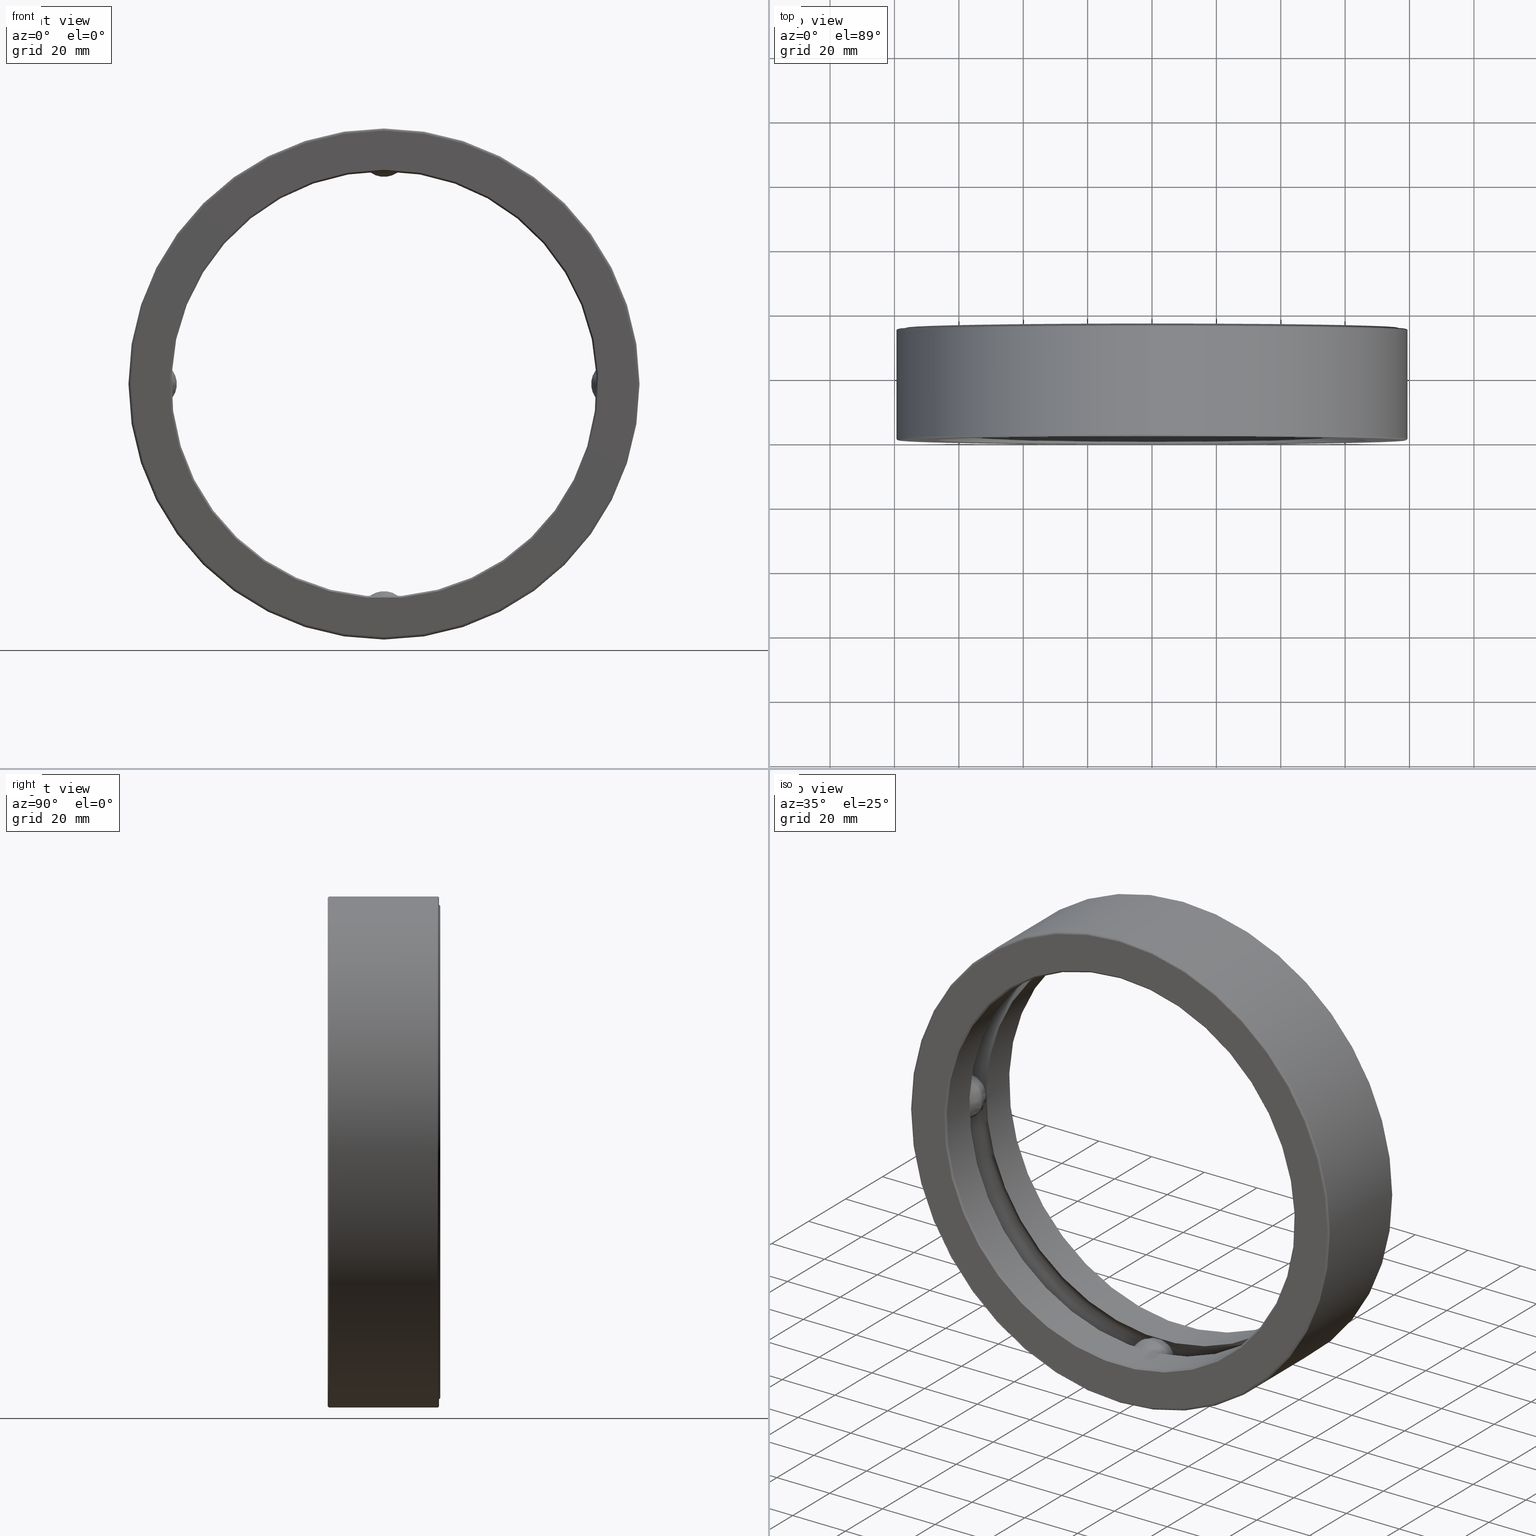
[diagram: canonical four-view strip — front | top / right | iso, engineering-drawing reading convention]
A machine part, canonical four-view strip (front | top / right | iso — engineering-drawing reading convention). The complete STEP part file that produces these views, byte-faithful:
ISO-10303-21;
HEADER;
FILE_DESCRIPTION (( 'STEP AP203' ),
    '1' );
FILE_NAME ('T-100-49.step',
    '2016-06-29T18:27:42',
    ( '' ),
    ( '' ),
    'SwSTEP 2.0',
    'SolidWorks 2016',
    '' );
FILE_SCHEMA (( 'CONFIG_CONTROL_DESIGN' ));
ENDSEC;

DATA;
#1 = CC_DESIGN_DATE_AND_TIME_ASSIGNMENT ( #250, #313, ( #371 ) ) ;
#2 = CARTESIAN_POINT ( 'NONE',  ( 0.0000000000000000000, 1.354999999999999100, 0.0000000000000000000 ) ) ;
#3 = CARTESIAN_POINT ( 'NONE',  ( 0.0000000000000000000, -2.433052119357234300E-016, 0.0000000000000000000 ) ) ;
#4 = EDGE_LOOP ( 'NONE', ( #182 ) ) ;
#5 = DIRECTION ( 'NONE',  ( -0.0000000000000000000, 1.000000000000000000, -0.0000000000000000000 ) ) ;
#6 = CARTESIAN_POINT ( 'NONE',  ( 0.0000000000000000000, 1.359999999999999900, 0.0000000000000000000 ) ) ;
#7 = VERTEX_POINT ( 'NONE', #215 ) ;
#8 = FACE_OUTER_BOUND ( 'NONE', #504, .T. ) ;
#9 =( LENGTH_UNIT ( ) NAMED_UNIT ( * ) SI_UNIT ( $, .METRE. ) );
#10 = CARTESIAN_POINT ( 'NONE',  ( 0.0000000000000000000, 0.0000000000000000000, 0.0000000000000000000 ) ) ;
#11 = DIRECTION ( 'NONE',  ( 0.0000000000000000000, 0.0000000000000000000, 1.000000000000000000 ) ) ;
#12 = PLANE ( 'NONE',  #190 ) ;
#13 = AXIS2_PLACEMENT_3D ( 'NONE', #195, #471, #516 ) ;
#14 = CARTESIAN_POINT ( 'NONE',  ( 0.0000000000000000000, 0.8691149773559424500, 2.600000000000000100 ) ) ;
#15 = ORIENTED_EDGE ( 'NONE', *, *, #137, .F. ) ;
#16 = APPLICATION_CONTEXT ( 'configuration controlled 3d designs of mechanical parts and assemblies' ) ;
#17 = PERSON_AND_ORGANIZATION_ROLE ( 'creator' ) ;
#18 = ORIENTED_EDGE ( 'NONE', *, *, #61, .F. ) ;
#19 = FACE_OUTER_BOUND ( 'NONE', #165, .T. ) ;
#20 = DIRECTION ( 'NONE',  ( -0.0000000000000000000, 1.000000000000000000, -0.0000000000000000000 ) ) ;
#21 = AXIS2_PLACEMENT_3D ( 'NONE', #336, #83, #126 ) ;
#22 = EDGE_CURVE ( 'NONE', #226, #226, #65, .T. ) ;
#23 = DIRECTION ( 'NONE',  ( -0.0000000000000000000, 1.000000000000000000, -0.0000000000000000000 ) ) ;
#24 = AXIS2_PLACEMENT_3D ( 'NONE', #136, #139, #529 ) ;
#25 = DIRECTION ( 'NONE',  ( -0.0000000000000000000, 1.000000000000000000, -0.0000000000000000000 ) ) ;
#26 = ORIENTED_EDGE ( 'NONE', *, *, #435, .T. ) ;
#27 = DIRECTION ( 'NONE',  ( -0.0000000000000000000, 1.000000000000000000, -0.0000000000000000000 ) ) ;
#28 = ORIENTED_EDGE ( 'NONE', *, *, #206, .F. ) ;
#29 = FACE_OUTER_BOUND ( 'NONE', #509, .T. ) ;
#30 = EDGE_LOOP ( 'NONE', ( #351 ) ) ;
#31 = ORIENTED_EDGE ( 'NONE', *, *, #96, .F. ) ;
#32 = COORDINATED_UNIVERSAL_TIME_OFFSET ( 5, 0, .BEHIND. ) ;
#33 = CC_DESIGN_APPROVAL ( #55, ( #432 ) ) ;
#34 = VERTEX_POINT ( 'NONE', #402 ) ;
#35 = DIRECTION ( 'NONE',  ( 0.0000000000000000000, 0.0000000000000000000, -1.000000000000000000 ) ) ;
#36 = EDGE_CURVE ( 'NONE', #167, #167, #503, .T. ) ;
#37 = CARTESIAN_POINT ( 'NONE',  ( 2.814750000000001000, 0.6874999999999996700, -1.965529419701742700E-014 ) ) ;
#38 = EDGE_LOOP ( 'NONE', ( #15 ) ) ;
#39 = EDGE_LOOP ( 'NONE', ( #56 ) ) ;
#40 = DIRECTION ( 'NONE',  ( -0.0000000000000000000, 1.000000000000000000, 0.0000000000000000000 ) ) ;
#41 = FACE_OUTER_BOUND ( 'NONE', #420, .T. ) ;
#42 = CIRCLE ( 'NONE', #286, 3.098000000000000800 ) ;
#43 = DIRECTION ( 'NONE',  ( 0.0000000000000000000, 0.0000000000000000000, 1.000000000000000000 ) ) ;
#44 = PLANE ( 'NONE',  #21 ) ;
#45 =( CONVERSION_BASED_UNIT ( 'INCH', #238 ) LENGTH_UNIT ( ) NAMED_UNIT ( #355 ) );
#46 = AXIS2_PLACEMENT_3D ( 'NONE', #334, #78, #162 ) ;
#47 = DIRECTION ( 'NONE',  ( -0.0000000000000000000, 1.000000000000000000, -0.0000000000000000000 ) ) ;
#48 = PERSON_AND_ORGANIZATION ( #374, #192 ) ;
#49 = CIRCLE ( 'NONE', #140, 3.125000000000000000 ) ;
#50 = CARTESIAN_POINT ( 'NONE',  ( 0.0000000000000000000, 1.374999999999999300, 0.0000000000000000000 ) ) ;
#51 = EDGE_CURVE ( 'NONE', #262, #262, #155, .T. ) ;
#52 = DIRECTION ( 'NONE',  ( 0.0000000000000000000, 0.0000000000000000000, 1.000000000000000000 ) ) ;
#53 = MANIFOLD_SOLID_BREP ( 'BALLS[3]', #407 ) ;
#54 = CARTESIAN_POINT ( 'NONE',  ( 0.0000000000000000000, 0.0000000000000000000, 0.0000000000000000000 ) ) ;
#55 = APPROVAL ( #311, 'UNSPECIFIED' ) ;
#56 = ORIENTED_EDGE ( 'NONE', *, *, #172, .F. ) ;
#57 = APPROVAL_ROLE ( '' ) ;
#58 = CALENDAR_DATE ( 2016, 29, 6 ) ;
#59 = VERTEX_POINT ( 'NONE', #531 ) ;
#60 = FACE_OUTER_BOUND ( 'NONE', #4, .T. ) ;
#61 = EDGE_CURVE ( 'NONE', #147, #147, #193, .T. ) ;
#62 = FACE_BOUND ( 'NONE', #472, .T. ) ;
#63 = AXIS2_PLACEMENT_3D ( 'NONE', #417, #27, #321 ) ;
#64 = EDGE_CURVE ( 'NONE', #482, #482, #42, .T. ) ;
#65 = CIRCLE ( 'NONE', #562, 3.105000000000000400 ) ;
#66 = CARTESIAN_POINT ( 'NONE',  ( 0.0000000000000000000, 0.0000000000000000000, 0.0000000000000000000 ) ) ;
#67 = EDGE_LOOP ( 'NONE', ( #292 ) ) ;
#68 = CONICAL_SURFACE ( 'NONE', #354, 3.100000000000000100, 0.7853981633975611900 ) ;
#69 = CIRCLE ( 'NONE', #416, 2.600000000000000100 ) ;
#70 = DIRECTION ( 'NONE',  ( -0.0000000000000000000, 1.000000000000000000, -0.0000000000000000000 ) ) ;
#71 = ORIENTED_EDGE ( 'NONE', *, *, #536, .T. ) ;
#72 = AXIS2_PLACEMENT_3D ( 'NONE', #278, #331, #424 ) ;
#73 = FACE_BOUND ( 'NONE', #120, .T. ) ;
#74 = ADVANCED_FACE ( 'NONE', ( ), #346, .T. ) ;
#75 = DIRECTION ( 'NONE',  ( -0.0000000000000000000, 1.000000000000000000, -0.0000000000000000000 ) ) ;
#76 = ADVANCED_FACE ( 'NONE', ( #97, #82 ), #12, .F. ) ;
#77 = EDGE_LOOP ( 'NONE', ( #159 ) ) ;
#78 = DIRECTION ( 'NONE',  ( -0.0000000000000000000, 1.000000000000000000, -0.0000000000000000000 ) ) ;
#79 = EDGE_LOOP ( 'NONE', ( #501 ) ) ;
#80 = AXIS2_PLACEMENT_3D ( 'NONE', #499, #405, #349 ) ;
#81 = PERSON_AND_ORGANIZATION ( #374, #192 ) ;
#82 = FACE_OUTER_BOUND ( 'NONE', #327, .T. ) ;
#83 = DIRECTION ( 'NONE',  ( 0.0000000000000000000, -1.000000000000000000, 0.0000000000000000000 ) ) ;
#84 = DIRECTION ( 'NONE',  ( 1.000000000000000000, 0.0000000000000000000, -1.047444401652939500E-014 ) ) ;
#85 = EDGE_CURVE ( 'NONE', #373, #373, #227, .T. ) ;
#86 = CARTESIAN_POINT ( 'NONE',  ( 0.0000000000000000000, 0.0000000000000000000, 0.0000000000000000000 ) ) ;
#87 = ORIENTED_EDGE ( 'NONE', *, *, #225, .T. ) ;
#88 = ADVANCED_FACE ( 'NONE', ( #316, #62 ), #90, .T. ) ;
#89 = EDGE_CURVE ( 'NONE', #559, #559, #69, .T. ) ;
#90 = CONICAL_SURFACE ( 'NONE', #379, 3.009999999999999800, 0.7853981633974529400 ) ;
#91 = DIRECTION ( 'NONE',  ( 0.0000000000000000000, 0.0000000000000000000, 1.000000000000000000 ) ) ;
#92 = DIRECTION ( 'NONE',  ( -0.0000000000000000000, 1.000000000000000000, -0.0000000000000000000 ) ) ;
#93 = AXIS2_PLACEMENT_3D ( 'NONE', #2, #487, #299 ) ;
#94 = APPROVAL_PERSON_ORGANIZATION ( #48, #55, #273 ) ;
#95 = TOROIDAL_SURFACE ( 'NONE', #46, 2.814750000000001000, 0.2812499999999998300 ) ;
#96 = EDGE_CURVE ( 'NONE', #34, #34, #410, .T. ) ;
#97 = FACE_BOUND ( 'NONE', #361, .T. ) ;
#98 = PERSON_AND_ORGANIZATION_ROLE ( 'classification_officer' ) ;
#99 = PERSON_AND_ORGANIZATION_ROLE ( 'design_supplier' ) ;
#100 = EDGE_LOOP ( 'NONE', ( #153 ) ) ;
#101 = CONICAL_SURFACE ( 'NONE', #291, 3.109999999999999900, 0.7853981633974492800 ) ;
#102 = CC_DESIGN_PERSON_AND_ORGANIZATION_ASSIGNMENT ( #81, #500, ( #318 ) ) ;
#103 = CARTESIAN_POINT ( 'NONE',  ( -9.912768790691179700E-032, -1.216526059678617200E-016, 0.0000000000000000000 ) ) ;
#104 = AXIS2_PLACEMENT_3D ( 'NONE', #86, #339, #342 ) ;
#105 = DIRECTION ( 'NONE',  ( 0.0000000000000000000, 0.0000000000000000000, 1.000000000000000000 ) ) ;
#106 = DIRECTION ( 'NONE',  ( -0.0000000000000000000, 1.000000000000000000, -0.0000000000000000000 ) ) ;
#107 = EDGE_CURVE ( 'NONE', #467, #467, #252, .T. ) ;
#108 = EDGE_LOOP ( 'NONE', ( #359 ) ) ;
#109 = FACE_OUTER_BOUND ( 'NONE', #30, .T. ) ;
#110 = FACE_BOUND ( 'NONE', #548, .T. ) ;
#111 = EDGE_CURVE ( 'NONE', #59, #59, #49, .T. ) ;
#112 = ADVANCED_FACE ( 'NONE', ( #60, #390 ), #369, .F. ) ;
#113 = MANIFOLD_SOLID_BREP ( 'Revolve2[1]', #224 ) ;
#114 = EDGE_LOOP ( 'NONE', ( #453 ) ) ;
#115 = ADVANCED_FACE ( 'NONE', ( #211, #463 ), #274, .F. ) ;
#116 = AXIS2_PLACEMENT_3D ( 'NONE', #298, #40, #169 ) ;
#117 = DIRECTION ( 'NONE',  ( -0.0000000000000000000, 1.000000000000000000, -0.0000000000000000000 ) ) ;
#118 = DIRECTION ( 'NONE',  ( 0.0000000000000000000, 0.0000000000000000000, 1.000000000000000000 ) ) ;
#119 = DIRECTION ( 'NONE',  ( -1.000000000000000000, 0.0000000000000000000, 6.982962677686272200E-015 ) ) ;
#120 = EDGE_LOOP ( 'NONE', ( #191 ) ) ;
#121 = DIRECTION ( 'NONE',  ( 0.0000000000000000000, 0.0000000000000000000, 1.000000000000000000 ) ) ;
#122 = EDGE_LOOP ( 'NONE', ( #496 ) ) ;
#123 = CARTESIAN_POINT ( 'NONE',  ( 0.0000000000000000000, 1.286999999999999500, 0.0000000000000000000 ) ) ;
#124 = FACE_OUTER_BOUND ( 'NONE', #67, .T. ) ;
#125 = CIRCLE ( 'NONE', #418, 3.039750000000000600 ) ;
#126 = DIRECTION ( 'NONE',  ( 0.0000000000000000000, -0.0000000000000000000, -1.000000000000000000 ) ) ;
#127 = DIRECTION ( 'NONE',  ( 0.0000000000000000000, -1.000000000000000000, 0.0000000000000000000 ) ) ;
#128 = DIRECTION ( 'NONE',  ( -0.0000000000000000000, 1.000000000000000000, -0.0000000000000000000 ) ) ;
#129 = ORIENTED_EDGE ( 'NONE', *, *, #85, .F. ) ;
#130 = DIRECTION ( 'NONE',  ( -0.0000000000000000000, 1.000000000000000000, -0.0000000000000000000 ) ) ;
#131 = DIRECTION ( 'NONE',  ( -0.0000000000000000000, 1.000000000000000000, -0.0000000000000000000 ) ) ;
#132 = AXIS2_PLACEMENT_3D ( 'NONE', #149, #232, #283 ) ;
#133 = CARTESIAN_POINT ( 'NONE',  ( 0.0000000000000000000, 0.5058850226440569900, 2.600000000000000100 ) ) ;
#134 = CARTESIAN_POINT ( 'NONE',  ( 0.0000000000000000000, 1.359999999999999900, 0.0000000000000000000 ) ) ;
#135 = ORIENTED_EDGE ( 'NONE', *, *, #22, .T. ) ;
#136 = CARTESIAN_POINT ( 'NONE',  ( 0.0000000000000000000, 0.0000000000000000000, 0.0000000000000000000 ) ) ;
#137 = EDGE_CURVE ( 'NONE', #445, #445, #375, .T. ) ;
#138 = CYLINDRICAL_SURFACE ( 'NONE', #24, 3.125000000000000000 ) ;
#139 = DIRECTION ( 'NONE',  ( -0.0000000000000000000, 1.000000000000000000, -0.0000000000000000000 ) ) ;
#140 = AXIS2_PLACEMENT_3D ( 'NONE', #196, #367, #328 ) ;
#141 = APPROVAL_ROLE ( '' ) ;
#142 = DIRECTION ( 'NONE',  ( 1.000000000000000000, 0.0000000000000000000, 0.0000000000000000000 ) ) ;
#143 = CLOSED_SHELL ( 'NONE', ( #430 ) ) ;
#144 = FACE_OUTER_BOUND ( 'NONE', #122, .T. ) ;
#145 = ORIENTED_EDGE ( 'NONE', *, *, #111, .F. ) ;
#146 = APPROVAL_DATE_TIME ( #173, #231 ) ;
#147 = VERTEX_POINT ( 'NONE', #307 ) ;
#148 = DIRECTION ( 'NONE',  ( 0.0000000000000000000, 0.0000000000000000000, 1.000000000000000000 ) ) ;
#149 = CARTESIAN_POINT ( 'NONE',  ( 0.0000000000000000000, 1.339999999999999900, 0.0000000000000000000 ) ) ;
#150 = DIRECTION ( 'NONE',  ( -0.0000000000000000000, 1.000000000000000000, -0.0000000000000000000 ) ) ;
#151 = EDGE_LOOP ( 'NONE', ( #335 ) ) ;
#152 = PERSON_AND_ORGANIZATION ( #374, #192 ) ;
#153 = ORIENTED_EDGE ( 'NONE', *, *, #451, .T. ) ;
#154 = CIRCLE ( 'NONE', #362, 3.009999999999999800 ) ;
#155 = CIRCLE ( 'NONE', #257, 3.105000000000000900 ) ;
#156 = DIRECTION ( 'NONE',  ( 0.0000000000000000000, 0.0000000000000000000, 1.000000000000000000 ) ) ;
#157 = ADVANCED_FACE ( 'NONE', ( #144, #446 ), #526, .T. ) ;
#158 = AXIS2_PLACEMENT_3D ( 'NONE', #66, #70, #475 ) ;
#159 = ORIENTED_EDGE ( 'NONE', *, *, #51, .F. ) ;
#160 = CALENDAR_DATE ( 2016, 29, 6 ) ;
#161 = FACE_OUTER_BOUND ( 'NONE', #363, .T. ) ;
#162 = DIRECTION ( 'NONE',  ( 0.0000000000000000000, 0.0000000000000000000, 1.000000000000000000 ) ) ;
#163 = ORIENTED_EDGE ( 'NONE', *, *, #64, .T. ) ;
#164 = ORIENTED_EDGE ( 'NONE', *, *, #36, .T. ) ;
#165 = EDGE_LOOP ( 'NONE', ( #478 ) ) ;
#166 = CARTESIAN_POINT ( 'NONE',  ( 0.0000000000000000000, 0.0000000000000000000, 0.0000000000000000000 ) ) ;
#167 = VERTEX_POINT ( 'NONE', #489 ) ;
#168 = FACE_OUTER_BOUND ( 'NONE', #542, .T. ) ;
#169 = DIRECTION ( 'NONE',  ( 0.0000000000000000000, 0.0000000000000000000, 1.000000000000000000 ) ) ;
#170 = CARTESIAN_POINT ( 'NONE',  ( 0.0000000000000000000, 0.8562499999999996200, 3.098000000000000800 ) ) ;
#171 = DIRECTION ( 'NONE',  ( -0.0000000000000000000, 1.000000000000000000, -0.0000000000000000000 ) ) ;
#172 = EDGE_CURVE ( 'NONE', #389, #389, #322, .T. ) ;
#173 = DATE_AND_TIME ( #160, #287 ) ;
#174 = SPHERICAL_SURFACE ( 'NONE', #241, 0.2812500000000001700 ) ;
#175 = DIRECTION ( 'NONE',  ( -0.0000000000000000000, 1.000000000000000000, -0.0000000000000000000 ) ) ;
#176 = CARTESIAN_POINT ( 'NONE',  ( 0.0000000000000000000, 0.02000000000000060800, 2.600000000000000100 ) ) ;
#177 = PRODUCT_DEFINITION_FORMATION_WITH_SPECIFIED_SOURCE ( 'ANY', '', #318, .NOT_KNOWN. ) ;
#178 = APPROVAL_STATUS ( 'not_yet_approved' ) ;
#179 = APPROVAL_STATUS ( 'not_yet_approved' ) ;
#180 = EDGE_CURVE ( 'NONE', #281, #281, #551, .T. ) ;
#181 = CALENDAR_DATE ( 2016, 29, 6 ) ;
#182 = ORIENTED_EDGE ( 'NONE', *, *, #435, .F. ) ;
#183 = VERTEX_POINT ( 'NONE', #14 ) ;
#184 = CIRCLE ( 'NONE', #72, 3.105000000000000900 ) ;
#185 = APPLICATION_CONTEXT ( 'configuration controlled 3d designs of mechanical parts and assemblies' ) ;
#186 = MANIFOLD_SOLID_BREP ( 'Revolve2[2]', #340 ) ;
#187 = CARTESIAN_POINT ( 'NONE',  ( 0.0000000000000000000, -2.433052119357234800E-016, 0.0000000000000000000 ) ) ;
#188 = AXIS2_PLACEMENT_3D ( 'NONE', #3, #566, #433 ) ;
#189 = FACE_BOUND ( 'NONE', #209, .T. ) ;
#190 = AXIS2_PLACEMENT_3D ( 'NONE', #395, #127, #493 ) ;
#191 = ORIENTED_EDGE ( 'NONE', *, *, #228, .T. ) ;
#192 = ORGANIZATION ( 'UNSPECIFIED', 'UNSPECIFIED', '' ) ;
#193 = CIRCLE ( 'NONE', #477, 3.044999999999999900 ) ;
#194 = AXIS2_PLACEMENT_3D ( 'NONE', #166, #75, #485 ) ;
#195 = CARTESIAN_POINT ( 'NONE',  ( -2.814750000000001000, 0.6874999999999996700, 0.0000000000000000000 ) ) ;
#196 = CARTESIAN_POINT ( 'NONE',  ( 0.0000000000000000000, 1.339999999999999900, 0.0000000000000000000 ) ) ;
#197 = CARTESIAN_POINT ( 'NONE',  ( 0.0000000000000000000, 0.8562499999999996200, 0.0000000000000000000 ) ) ;
#198 = ADVANCED_FACE ( 'NONE', ( #29, #282 ), #310, .F. ) ;
#199 = CYLINDRICAL_SURFACE ( 'NONE', #158, 2.600000000000000100 ) ;
#200 = EDGE_CURVE ( 'NONE', #309, #309, #515, .T. ) ;
#201 = ADVANCED_FACE ( 'NONE', ( #161, #423 ), #199, .F. ) ;
#202 = DIRECTION ( 'NONE',  ( 6.982962677686272200E-015, -0.0000000000000000000, 1.000000000000000000 ) ) ;
#203 = AXIS2_PLACEMENT_3D ( 'NONE', #187, #549, #470 ) ;
#204 = EDGE_LOOP ( 'NONE', ( #163 ) ) ;
#205 = FACE_BOUND ( 'NONE', #341, .T. ) ;
#206 = EDGE_CURVE ( 'NONE', #353, #353, #297, .T. ) ;
#207 = DIRECTION ( 'NONE',  ( -0.0000000000000000000, 1.000000000000000000, -0.0000000000000000000 ) ) ;
#208 = DIRECTION ( 'NONE',  ( -3.491481338843136100E-015, 0.0000000000000000000, -1.000000000000000000 ) ) ;
#209 = EDGE_LOOP ( 'NONE', ( #442 ) ) ;
#210 = FACE_BOUND ( 'NONE', #279, .T. ) ;
#211 = FACE_OUTER_BOUND ( 'NONE', #269, .T. ) ;
#212 = CARTESIAN_POINT ( 'NONE',  ( 0.0000000000000000000, -2.438577946378415400E-016, 3.105000000000000900 ) ) ;
#213 = DIRECTION ( 'NONE',  ( -0.0000000000000000000, 1.000000000000000000, -0.0000000000000000000 ) ) ;
#214 = AXIS2_PLACEMENT_3D ( 'NONE', #284, #23, #105 ) ;
#215 = CARTESIAN_POINT ( 'NONE',  ( 0.0000000000000000000, 1.374999999999999300, 3.009999999999999800 ) ) ;
#216 = CARTESIAN_POINT ( 'NONE',  ( 0.0000000000000000000, 0.01499999999999997700, 3.125000000000000000 ) ) ;
#217 = AXIS2_PLACEMENT_3D ( 'NONE', #388, #207, #121 ) ;
#218 = CC_DESIGN_SECURITY_CLASSIFICATION ( #371, ( #177 ) ) ;
#219 = PERSON_AND_ORGANIZATION ( #374, #192 ) ;
#220 = CARTESIAN_POINT ( 'NONE',  ( 0.0000000000000000000, 1.286999999999999500, 3.098000000000000800 ) ) ;
#221 =( NAMED_UNIT ( * ) PLANE_ANGLE_UNIT ( ) SI_UNIT ( $, .RADIAN. ) );
#222 = AXIS2_PLACEMENT_3D ( 'NONE', #386, #479, #483 ) ;
#223 = EDGE_LOOP ( 'NONE', ( #382 ) ) ;
#224 = CLOSED_SHELL ( 'NONE', ( #476, #384, #288, #300, #244, #76, #563, #517, #561, #242, #481, #520, #112, #332, #198 ) ) ;
#225 = EDGE_CURVE ( 'NONE', #497, #497, #184, .T. ) ;
#226 = VERTEX_POINT ( 'NONE', #535 ) ;
#227 = CIRCLE ( 'NONE', #217, 3.039750000000000600 ) ;
#228 = EDGE_CURVE ( 'NONE', #502, #502, #488, .T. ) ;
#229 = EDGE_LOOP ( 'NONE', ( #370 ) ) ;
#230 = EDGE_LOOP ( 'NONE', ( #461 ) ) ;
#231 = APPROVAL ( #179, 'UNSPECIFIED' ) ;
#232 = DIRECTION ( 'NONE',  ( -0.0000000000000000000, 1.000000000000000000, -0.0000000000000000000 ) ) ;
#233 = DIRECTION ( 'NONE',  ( -0.0000000000000000000, 1.000000000000000000, -0.0000000000000000000 ) ) ;
#234 = CLOSED_SHELL ( 'NONE', ( #434 ) ) ;
#235 = EDGE_LOOP ( 'NONE', ( #275 ) ) ;
#236 = EDGE_LOOP ( 'NONE', ( #145 ) ) ;
#237 = ORIENTED_EDGE ( 'NONE', *, *, #225, .F. ) ;
#238 = LENGTH_MEASURE_WITH_UNIT ( LENGTH_MEASURE( 0.02539999999999999900 ), #9 );
#239 = FACE_BOUND ( 'NONE', #38, .T. ) ;
#240 = PLANE ( 'NONE',  #385 ) ;
#241 = AXIS2_PLACEMENT_3D ( 'NONE', #37, #202, #119 ) ;
#242 = ADVANCED_FACE ( 'NONE', ( #168, #189 ), #240, .F. ) ;
#243 = DIRECTION ( 'NONE',  ( 0.0000000000000000000, 0.0000000000000000000, 1.000000000000000000 ) ) ;
#244 = ADVANCED_FACE ( 'NONE', ( #360, #276 ), #429, .F. ) ;
#245 = CARTESIAN_POINT ( 'NONE',  ( 0.0000000000000000000, 0.8562499999999996200, 0.0000000000000000000 ) ) ;
#246 = AXIS2_PLACEMENT_3D ( 'NONE', #527, #233, #528 ) ;
#247 = PLANE ( 'NONE',  #116 ) ;
#248 = EDGE_LOOP ( 'NONE', ( #18 ) ) ;
#249 = DIRECTION ( 'NONE',  ( 0.0000000000000000000, 0.0000000000000000000, 1.000000000000000000 ) ) ;
#250 = DATE_AND_TIME ( #58, #364 ) ;
#251 = FACE_OUTER_BOUND ( 'NONE', #428, .T. ) ;
#252 = CIRCLE ( 'NONE', #203, 3.109999999999999900 ) ;
#253 = CC_DESIGN_DATE_AND_TIME_ASSIGNMENT ( #380, #458, ( #432 ) ) ;
#254 = ADVANCED_FACE ( 'NONE', ( ), #560, .T. ) ;
#255 = CARTESIAN_POINT ( 'NONE',  ( 0.0000000000000000000, 1.339999999999999900, 0.0000000000000000000 ) ) ;
#256 = ORIENTED_EDGE ( 'NONE', *, *, #206, .T. ) ;
#257 = AXIS2_PLACEMENT_3D ( 'NONE', #537, #92, #249 ) ;
#258 = DIRECTION ( 'NONE',  ( 0.0000000000000000000, 0.0000000000000000000, 1.000000000000000000 ) ) ;
#259 = CARTESIAN_POINT ( 'NONE',  ( 0.0000000000000000000, 0.8562499999999996200, 3.039750000000000600 ) ) ;
#260 = APPROVAL_PERSON_ORGANIZATION ( #280, #231, #57 ) ;
#261 = DIRECTION ( 'NONE',  ( 0.0000000000000000000, 0.0000000000000000000, 1.000000000000000000 ) ) ;
#262 = VERTEX_POINT ( 'NONE', #212 ) ;
#263 = CARTESIAN_POINT ( 'NONE',  ( 0.0000000000000000000, -2.433052119357234300E-016, 3.100000000000000100 ) ) ;
#264 = AXIS2_PLACEMENT_3D ( 'NONE', #523, #392, #243 ) ;
#265 = CARTESIAN_POINT ( 'NONE',  ( 0.0000000000000000000, 1.339999999999999900, 3.105000000000000900 ) ) ;
#266 = MANIFOLD_SOLID_BREP ( 'BALLS[2]', #143 ) ;
#267 = APPLICATION_PROTOCOL_DEFINITION ( 'international standard', 'config_control_design', 1994, #16 ) ;
#268 = EDGE_CURVE ( 'NONE', #514, #514, #125, .T. ) ;
#269 = EDGE_LOOP ( 'NONE', ( #71 ) ) ;
#270 = ORIENTED_EDGE ( 'NONE', *, *, #268, .T. ) ;
#271 = PERSON_AND_ORGANIZATION ( #374, #192 ) ;
#272 = VERTEX_POINT ( 'NONE', #216 ) ;
#273 = APPROVAL_ROLE ( '' ) ;
#274 = TOROIDAL_SURFACE ( 'NONE', #246, 2.814750000000001000, 0.2812499999999998900 ) ;
#275 = ORIENTED_EDGE ( 'NONE', *, *, #96, .T. ) ;
#276 = FACE_OUTER_BOUND ( 'NONE', #235, .T. ) ;
#277 = DIRECTION ( 'NONE',  ( -0.0000000000000000000, 1.000000000000000000, -0.0000000000000000000 ) ) ;
#278 = CARTESIAN_POINT ( 'NONE',  ( 0.0000000000000000000, 0.004999999999999257600, 0.0000000000000000000 ) ) ;
#279 = EDGE_LOOP ( 'NONE', ( #387 ) ) ;
#280 = PERSON_AND_ORGANIZATION ( #374, #192 ) ;
#281 = VERTEX_POINT ( 'NONE', #170 ) ;
#282 = FACE_OUTER_BOUND ( 'NONE', #230, .T. ) ;
#283 = DIRECTION ( 'NONE',  ( 0.0000000000000000000, 0.0000000000000000000, 1.000000000000000000 ) ) ;
#284 = CARTESIAN_POINT ( 'NONE',  ( 0.0000000000000000000, 1.375000000000000000, 0.0000000000000000000 ) ) ;
#285 = CC_DESIGN_APPROVAL ( #411, ( #371 ) ) ;
#286 = AXIS2_PLACEMENT_3D ( 'NONE', #123, #533, #393 ) ;
#287 = LOCAL_TIME ( 14, 27, 42.00000000000000000, #32 ) ;
#288 = ADVANCED_FACE ( 'NONE', ( #557, #546 ), #518, .F. ) ;
#289 = ORIENTED_EDGE ( 'NONE', *, *, #536, .F. ) ;
#290 = ADVANCED_FACE ( 'NONE', ( #508, #239 ), #438, .F. ) ;
#291 = AXIS2_PLACEMENT_3D ( 'NONE', #304, #130, #91 ) ;
#292 = ORIENTED_EDGE ( 'NONE', *, *, #89, .F. ) ;
#293 = COORDINATED_UNIVERSAL_TIME_OFFSET ( 5, 0, .BEHIND. ) ;
#294 = PLANE ( 'NONE',  #222 ) ;
#295 = TOROIDAL_SURFACE ( 'NONE', #465, 3.105000000000000400, 0.01999999999999992400 ) ;
#296 = AXIS2_PLACEMENT_3D ( 'NONE', #10, #131, #261 ) ;
#297 = CIRCLE ( 'NONE', #494, 3.105000000000000900 ) ;
#298 = CARTESIAN_POINT ( 'NONE',  ( -1.926303072455575300E-015, 1.374999999999999800, 0.0000000000000000000 ) ) ;
#299 = DIRECTION ( 'NONE',  ( 0.0000000000000000000, 0.0000000000000000000, 1.000000000000000000 ) ) ;
#300 = ADVANCED_FACE ( 'NONE', ( #474, #303 ), #391, .F. ) ;
#301 = DIRECTION ( 'NONE',  ( -0.0000000000000000000, 1.000000000000000000, -0.0000000000000000000 ) ) ;
#302 = APPROVAL_DATE_TIME ( #426, #411 ) ;
#303 = FACE_BOUND ( 'NONE', #108, .T. ) ;
#304 = CARTESIAN_POINT ( 'NONE',  ( 0.0000000000000000000, -2.433052119357234800E-016, 0.0000000000000000000 ) ) ;
#305 = AXIS2_PLACEMENT_3D ( 'NONE', #396, #128, #512 ) ;
#306 = DIRECTION ( 'NONE',  ( -0.0000000000000000000, 1.000000000000000000, -0.0000000000000000000 ) ) ;
#307 = CARTESIAN_POINT ( 'NONE',  ( 0.0000000000000000000, 1.339999999999999900, 3.044999999999999900 ) ) ;
#308 = ORIENTED_EDGE ( 'NONE', *, *, #172, .T. ) ;
#309 = VERTEX_POINT ( 'NONE', #498 ) ;
#310 = CYLINDRICAL_SURFACE ( 'NONE', #345, 2.600000000000000100 ) ;
#311 = APPROVAL_STATUS ( 'not_yet_approved' ) ;
#312 = CC_DESIGN_APPROVAL ( #231, ( #177 ) ) ;
#313 = DATE_TIME_ROLE ( 'classification_date' ) ;
#314 = AXIS2_PLACEMENT_3D ( 'NONE', #326, #554, #148 ) ;
#315 = CIRCLE ( 'NONE', #505, 3.125000000000000000 ) ;
#316 = FACE_OUTER_BOUND ( 'NONE', #204, .T. ) ;
#317 = AXIS2_PLACEMENT_3D ( 'NONE', #348, #84, #350 ) ;
#318 = PRODUCT ( 'T-100-49', 'T-100-49', '', ( #459 ) ) ;
#319 = AXIS2_PLACEMENT_3D ( 'NONE', #54, #394, #142 ) ;
#320 = COORDINATED_UNIVERSAL_TIME_OFFSET ( 5, 0, .BEHIND. ) ;
#321 = DIRECTION ( 'NONE',  ( 0.0000000000000000000, 0.0000000000000000000, 1.000000000000000000 ) ) ;
#322 = CIRCLE ( 'NONE', #132, 3.105000000000000900 ) ;
#323 = UNCERTAINTY_MEASURE_WITH_UNIT (LENGTH_MEASURE( 1.000000000000000100E-005 ), #45, 'distance_accuracy_value', 'NONE');
#324 = CARTESIAN_POINT ( 'NONE',  ( 0.0000000000000000000, 0.0000000000000000000, 0.0000000000000000000 ) ) ;
#325 = DIRECTION ( 'NONE',  ( 0.0000000000000000000, 0.0000000000000000000, 1.000000000000000000 ) ) ;
#326 = CARTESIAN_POINT ( 'NONE',  ( 0.0000000000000000000, 1.354999999999999100, 0.0000000000000000000 ) ) ;
#327 = EDGE_LOOP ( 'NONE', ( #135 ) ) ;
#328 = DIRECTION ( 'NONE',  ( 0.0000000000000000000, 0.0000000000000000000, 1.000000000000000000 ) ) ;
#329 = FACE_OUTER_BOUND ( 'NONE', #543, .T. ) ;
#330 = CONICAL_SURFACE ( 'NONE', #413, 2.600000000000000100, 0.7853981633974142000 ) ;
#331 = DIRECTION ( 'NONE',  ( -0.0000000000000000000, 1.000000000000000000, -0.0000000000000000000 ) ) ;
#332 = ADVANCED_FACE ( 'NONE', ( #19, #73 ), #330, .F. ) ;
#333 = PERSON_AND_ORGANIZATION ( #374, #192 ) ;
#334 = CARTESIAN_POINT ( 'NONE',  ( 0.0000000000000000000, 0.6874999999999996700, 0.0000000000000000000 ) ) ;
#335 = ORIENTED_EDGE ( 'NONE', *, *, #268, .F. ) ;
#336 = CARTESIAN_POINT ( 'NONE',  ( 0.0000000000000000000, 0.8562499999999996200, 0.0000000000000000000 ) ) ;
#337 = CC_DESIGN_PERSON_AND_ORGANIZATION_ASSIGNMENT ( #219, #357, ( #177 ) ) ;
#338 = CLOSED_SHELL ( 'NONE', ( #254 ) ) ;
#339 = DIRECTION ( 'NONE',  ( -0.0000000000000000000, 1.000000000000000000, -0.0000000000000000000 ) ) ;
#340 = CLOSED_SHELL ( 'NONE', ( #378, #115, #201, #290, #490, #88, #157 ) ) ;
#341 = EDGE_LOOP ( 'NONE', ( #26 ) ) ;
#342 = DIRECTION ( 'NONE',  ( 0.0000000000000000000, 0.0000000000000000000, 1.000000000000000000 ) ) ;
#343 = FACE_OUTER_BOUND ( 'NONE', #100, .T. ) ;
#344 = CARTESIAN_POINT ( 'NONE',  ( 0.0000000000000000000, 0.5058850226440569900, 0.0000000000000000000 ) ) ;
#345 = AXIS2_PLACEMENT_3D ( 'NONE', #324, #277, #325 ) ;
#346 = SPHERICAL_SURFACE ( 'NONE', #317, 0.2812500000000001700 ) ;
#347 = CARTESIAN_POINT ( 'NONE',  ( 0.0000000000000000000, 1.354999999999999100, 2.600000000000000100 ) ) ;
#348 = CARTESIAN_POINT ( 'NONE',  ( -2.948294129552613800E-014, 0.6874999999999996700, -2.814750000000001000 ) ) ;
#349 = DIRECTION ( 'NONE',  ( 0.0000000000000000000, 0.0000000000000000000, 1.000000000000000000 ) ) ;
#350 = DIRECTION ( 'NONE',  ( 1.047444401652939500E-014, 0.0000000000000000000, 1.000000000000000000 ) ) ;
#351 = ORIENTED_EDGE ( 'NONE', *, *, #111, .T. ) ;
#352 = CARTESIAN_POINT ( 'NONE',  ( 0.0000000000000000000, -2.433052119357234300E-016, 0.0000000000000000000 ) ) ;
#353 = VERTEX_POINT ( 'NONE', #538 ) ;
#354 = AXIS2_PLACEMENT_3D ( 'NONE', #352, #306, #447 ) ;
#355 = DIMENSIONAL_EXPONENTS ( 1.000000000000000000, 0.0000000000000000000, 0.0000000000000000000, 0.0000000000000000000, 0.0000000000000000000, 0.0000000000000000000, 0.0000000000000000000 ) ;
#356 = DESIGN_CONTEXT ( 'detailed design', #185, 'design' ) ;
#357 = PERSON_AND_ORGANIZATION_ROLE ( 'creator' ) ;
#358 = DIRECTION ( 'NONE',  ( 0.0000000000000000000, 0.0000000000000000000, 1.000000000000000000 ) ) ;
#359 = ORIENTED_EDGE ( 'NONE', *, *, #61, .T. ) ;
#360 = FACE_OUTER_BOUND ( 'NONE', #248, .T. ) ;
#361 = EDGE_LOOP ( 'NONE', ( #31 ) ) ;
#362 = AXIS2_PLACEMENT_3D ( 'NONE', #50, #171, #11 ) ;
#363 = EDGE_LOOP ( 'NONE', ( #480 ) ) ;
#364 = LOCAL_TIME ( 14, 27, 42.00000000000000000, #565 ) ;
#365 = VERTEX_POINT ( 'NONE', #263 ) ;
#366 = DIRECTION ( 'NONE',  ( -0.0000000000000000000, 1.000000000000000000, 0.0000000000000000000 ) ) ;
#367 = DIRECTION ( 'NONE',  ( -0.0000000000000000000, 1.000000000000000000, -0.0000000000000000000 ) ) ;
#368 = CARTESIAN_POINT ( 'NONE',  ( 0.0000000000000000000, 0.5187499999999997100, 0.0000000000000000000 ) ) ;
#369 = PLANE ( 'NONE',  #530 ) ;
#370 = ORIENTED_EDGE ( 'NONE', *, *, #64, .F. ) ;
#371 = SECURITY_CLASSIFICATION ( '', '', #409 ) ;
#372 = ORIENTED_EDGE ( 'NONE', *, *, #22, .F. ) ;
#373 = VERTEX_POINT ( 'NONE', #540 ) ;
#374 = PERSON ( 'UNSPECIFIED', 'UNSPECIFIED', 'UNSPECIFIED', ('UNSPECIFIED'), ('UNSPECIFIED'), ('UNSPECIFIED') ) ;
#375 = CIRCLE ( 'NONE', #314, 2.600000000000000100 ) ;
#376 = ORIENTED_EDGE ( 'NONE', *, *, #228, .F. ) ;
#377 = AXIS2_PLACEMENT_3D ( 'NONE', #436, #441, #208 ) ;
#378 = ADVANCED_FACE ( 'NONE', ( #110, #8 ), #44, .T. ) ;
#379 = AXIS2_PLACEMENT_3D ( 'NONE', #448, #440, #491 ) ;
#380 = DATE_AND_TIME ( #507, #406 ) ;
#381 = CIRCLE ( 'NONE', #188, 3.100000000000000100 ) ;
#382 = ORIENTED_EDGE ( 'NONE', *, *, #522, .T. ) ;
#383 = CARTESIAN_POINT ( 'NONE',  ( 0.0000000000000000000, 0.01499999999999997700, 0.0000000000000000000 ) ) ;
#384 = ADVANCED_FACE ( 'NONE', ( #534, #401 ), #294, .F. ) ;
#385 = AXIS2_PLACEMENT_3D ( 'NONE', #510, #366, #419 ) ;
#386 = CARTESIAN_POINT ( 'NONE',  ( -1.085935744607950600E-015, 0.5187499999999997100, 0.0000000000000000000 ) ) ;
#387 = ORIENTED_EDGE ( 'NONE', *, *, #107, .T. ) ;
#388 = CARTESIAN_POINT ( 'NONE',  ( 0.0000000000000000000, 0.5187499999999998200, 0.0000000000000000000 ) ) ;
#389 = VERTEX_POINT ( 'NONE', #265 ) ;
#390 = FACE_BOUND ( 'NONE', #539, .T. ) ;
#391 = PLANE ( 'NONE',  #264 ) ;
#392 = DIRECTION ( 'NONE',  ( -0.0000000000000000000, 1.000000000000000000, 0.0000000000000000000 ) ) ;
#393 = DIRECTION ( 'NONE',  ( 0.0000000000000000000, 0.0000000000000000000, 1.000000000000000000 ) ) ;
#394 = DIRECTION ( 'NONE',  ( 0.0000000000000000000, 0.0000000000000000000, 1.000000000000000000 ) ) ;
#395 = CARTESIAN_POINT ( 'NONE',  ( 0.0000000000000000000, 1.359999999999999900, 0.0000000000000000000 ) ) ;
#396 = CARTESIAN_POINT ( 'NONE',  ( 0.0000000000000000000, 0.0000000000000000000, 0.0000000000000000000 ) ) ;
#397 = EDGE_LOOP ( 'NONE', ( #308 ) ) ;
#398 = CARTESIAN_POINT ( 'NONE',  ( 0.0000000000000000000, 0.004999999999999257600, 3.105000000000000900 ) ) ;
#399 = EDGE_LOOP ( 'NONE', ( #28 ) ) ;
#400 = DATE_AND_TIME ( #181, #466 ) ;
#401 = FACE_OUTER_BOUND ( 'NONE', #421, .T. ) ;
#402 = CARTESIAN_POINT ( 'NONE',  ( 0.0000000000000000000, 1.359999999999999900, 3.044999999999999900 ) ) ;
#403 = CARTESIAN_POINT ( 'NONE',  ( 0.0000000000000000000, 1.339999999999999900, 0.0000000000000000000 ) ) ;
#404 = ORIENTED_EDGE ( 'NONE', *, *, #107, .F. ) ;
#405 = DIRECTION ( 'NONE',  ( -0.0000000000000000000, 1.000000000000000000, -0.0000000000000000000 ) ) ;
#406 = LOCAL_TIME ( 14, 27, 42.00000000000000000, #320 ) ;
#407 = CLOSED_SHELL ( 'NONE', ( #74 ) ) ;
#408 = FACE_OUTER_BOUND ( 'NONE', #236, .T. ) ;
#409 = SECURITY_CLASSIFICATION_LEVEL ( 'unclassified' ) ;
#410 = CIRCLE ( 'NONE', #506, 3.044999999999999900 ) ;
#411 = APPROVAL ( #178, 'UNSPECIFIED' ) ;
#412 = MANIFOLD_SOLID_BREP ( 'BALLS[1]', #234 ) ;
#413 = AXIS2_PLACEMENT_3D ( 'NONE', #519, #443, #35 ) ;
#414 = CALENDAR_DATE ( 2016, 29, 6 ) ;
#415 = SPHERICAL_SURFACE ( 'NONE', #377, 0.2812500000000001700 ) ;
#416 = AXIS2_PLACEMENT_3D ( 'NONE', #344, #213, #258 ) ;
#417 = CARTESIAN_POINT ( 'NONE',  ( 0.0000000000000000000, 0.02000000000000060800, 0.0000000000000000000 ) ) ;
#418 = AXIS2_PLACEMENT_3D ( 'NONE', #245, #5, #118 ) ;
#419 = DIRECTION ( 'NONE',  ( 0.0000000000000000000, 0.0000000000000000000, 1.000000000000000000 ) ) ;
#420 = EDGE_LOOP ( 'NONE', ( #513 ) ) ;
#421 = EDGE_LOOP ( 'NONE', ( #256 ) ) ;
#422 = FACE_OUTER_BOUND ( 'NONE', #449, .T. ) ;
#423 = FACE_OUTER_BOUND ( 'NONE', #524, .T. ) ;
#424 = DIRECTION ( 'NONE',  ( 0.0000000000000000000, 0.0000000000000000000, 1.000000000000000000 ) ) ;
#425 = PRODUCT_RELATED_PRODUCT_CATEGORY ( 'detail', '', ( #318 ) ) ;
#426 = DATE_AND_TIME ( #414, #532 ) ;
#427 = MANIFOLD_SOLID_BREP ( 'Revolve3', #338 ) ;
#428 = EDGE_LOOP ( 'NONE', ( #87 ) ) ;
#429 = CYLINDRICAL_SURFACE ( 'NONE', #456, 3.044999999999999900 ) ;
#430 = ADVANCED_FACE ( 'NONE', ( ), #174, .T. ) ;
#431 = DIRECTION ( 'NONE',  ( -0.0000000000000000000, 1.000000000000000000, 0.0000000000000000000 ) ) ;
#432 = PRODUCT_DEFINITION ( 'UNKNOWN', '', #177, #356 ) ;
#433 = DIRECTION ( 'NONE',  ( 0.0000000000000000000, 0.0000000000000000000, 1.000000000000000000 ) ) ;
#434 = ADVANCED_FACE ( 'NONE', ( ), #415, .T. ) ;
#435 = EDGE_CURVE ( 'NONE', #365, #365, #381, .T. ) ;
#436 = CARTESIAN_POINT ( 'NONE',  ( 9.827647098508713700E-015, 0.6874999999999996700, 2.814750000000001000 ) ) ;
#437 = FACE_OUTER_BOUND ( 'NONE', #114, .T. ) ;
#438 = CONICAL_SURFACE ( 'NONE', #93, 2.600000000000000100, 0.7853981633974209700 ) ;
#439 = PRODUCT_DEFINITION_SHAPE ( 'NONE', 'NONE',  #432 ) ;
#440 = DIRECTION ( 'NONE',  ( 0.0000000000000000000, -1.000000000000000000, 0.0000000000000000000 ) ) ;
#441 = DIRECTION ( 'NONE',  ( -1.000000000000000000, 0.0000000000000000000, 3.491481338843136100E-015 ) ) ;
#442 = ORIENTED_EDGE ( 'NONE', *, *, #51, .T. ) ;
#443 = DIRECTION ( 'NONE',  ( 0.0000000000000000000, -1.000000000000000000, 0.0000000000000000000 ) ) ;
#444 =( GEOMETRIC_REPRESENTATION_CONTEXT ( 3 ) GLOBAL_UNCERTAINTY_ASSIGNED_CONTEXT ( ( #323 ) ) GLOBAL_UNIT_ASSIGNED_CONTEXT ( ( #45, #221, #545 ) ) REPRESENTATION_CONTEXT ( 'NONE', 'WORKASPACE' ) );
#445 = VERTEX_POINT ( 'NONE', #347 ) ;
#446 = FACE_OUTER_BOUND ( 'NONE', #229, .T. ) ;
#447 = DIRECTION ( 'NONE',  ( 0.0000000000000000000, 0.0000000000000000000, 1.000000000000000000 ) ) ;
#448 = CARTESIAN_POINT ( 'NONE',  ( 0.0000000000000000000, 1.374999999999999300, 0.0000000000000000000 ) ) ;
#449 = EDGE_LOOP ( 'NONE', ( #237 ) ) ;
#450 = CARTESIAN_POINT ( 'NONE',  ( 0.0000000000000000000, -2.433052119357234800E-016, 3.109999999999999900 ) ) ;
#451 = EDGE_CURVE ( 'NONE', #272, #272, #315, .T. ) ;
#452 = DIRECTION ( 'NONE',  ( 0.0000000000000000000, 0.0000000000000000000, 1.000000000000000000 ) ) ;
#453 = ORIENTED_EDGE ( 'NONE', *, *, #85, .T. ) ;
#454 = EDGE_LOOP ( 'NONE', ( #129 ) ) ;
#455 = APPROVAL_DATE_TIME ( #400, #55 ) ;
#456 = AXIS2_PLACEMENT_3D ( 'NONE', #558, #150, #469 ) ;
#457 = SHAPE_DEFINITION_REPRESENTATION ( #439, #553 ) ;
#458 = DATE_TIME_ROLE ( 'creation_date' ) ;
#459 = MECHANICAL_CONTEXT ( 'NONE', #16, 'mechanical' ) ;
#460 = ORIENTED_EDGE ( 'NONE', *, *, #522, .F. ) ;
#461 = ORIENTED_EDGE ( 'NONE', *, *, #89, .T. ) ;
#462 = FACE_OUTER_BOUND ( 'NONE', #223, .T. ) ;
#463 = FACE_OUTER_BOUND ( 'NONE', #151, .T. ) ;
#464 = EDGE_LOOP ( 'NONE', ( #486 ) ) ;
#465 = AXIS2_PLACEMENT_3D ( 'NONE', #403, #175, #492 ) ;
#466 = LOCAL_TIME ( 14, 27, 42.00000000000000000, #495 ) ;
#467 = VERTEX_POINT ( 'NONE', #450 ) ;
#468 = DIRECTION ( 'NONE',  ( 0.0000000000000000000, 0.0000000000000000000, 1.000000000000000000 ) ) ;
#469 = DIRECTION ( 'NONE',  ( 0.0000000000000000000, 0.0000000000000000000, 1.000000000000000000 ) ) ;
#470 = DIRECTION ( 'NONE',  ( 0.0000000000000000000, 0.0000000000000000000, 1.000000000000000000 ) ) ;
#471 = DIRECTION ( 'NONE',  ( 0.0000000000000000000, 0.0000000000000000000, -1.000000000000000000 ) ) ;
#472 = EDGE_LOOP ( 'NONE', ( #460 ) ) ;
#473 = FACE_OUTER_BOUND ( 'NONE', #77, .T. ) ;
#474 = FACE_OUTER_BOUND ( 'NONE', #39, .T. ) ;
#475 = DIRECTION ( 'NONE',  ( 0.0000000000000000000, 0.0000000000000000000, 1.000000000000000000 ) ) ;
#476 = ADVANCED_FACE ( 'NONE', ( #124, #437 ), #95, .F. ) ;
#477 = AXIS2_PLACEMENT_3D ( 'NONE', #255, #47, #52 ) ;
#478 = ORIENTED_EDGE ( 'NONE', *, *, #36, .F. ) ;
#479 = DIRECTION ( 'NONE',  ( 0.0000000000000000000, -1.000000000000000000, 0.0000000000000000000 ) ) ;
#480 = ORIENTED_EDGE ( 'NONE', *, *, #137, .T. ) ;
#481 = ADVANCED_FACE ( 'NONE', ( #473, #251 ), #544, .F. ) ;
#482 = VERTEX_POINT ( 'NONE', #220 ) ;
#483 = DIRECTION ( 'NONE',  ( 0.0000000000000000000, -0.0000000000000000000, -1.000000000000000000 ) ) ;
#484 = CC_DESIGN_PERSON_AND_ORGANIZATION_ASSIGNMENT ( #271, #99, ( #177 ) ) ;
#485 = DIRECTION ( 'NONE',  ( 0.0000000000000000000, 0.0000000000000000000, 1.000000000000000000 ) ) ;
#486 = ORIENTED_EDGE ( 'NONE', *, *, #200, .T. ) ;
#487 = DIRECTION ( 'NONE',  ( -0.0000000000000000000, 1.000000000000000000, -0.0000000000000000000 ) ) ;
#488 = CIRCLE ( 'NONE', #63, 2.600000000000000100 ) ;
#489 = CARTESIAN_POINT ( 'NONE',  ( 0.0000000000000000000, 0.0000000000000000000, 2.619999999999999200 ) ) ;
#490 = ADVANCED_FACE ( 'NONE', ( #462, #556 ), #247, .T. ) ;
#491 = DIRECTION ( 'NONE',  ( 0.0000000000000000000, 0.0000000000000000000, -1.000000000000000000 ) ) ;
#492 = DIRECTION ( 'NONE',  ( 0.0000000000000000000, 0.0000000000000000000, 1.000000000000000000 ) ) ;
#493 = DIRECTION ( 'NONE',  ( 0.0000000000000000000, -0.0000000000000000000, -1.000000000000000000 ) ) ;
#494 = AXIS2_PLACEMENT_3D ( 'NONE', #368, #106, #156 ) ;
#495 = COORDINATED_UNIVERSAL_TIME_OFFSET ( 5, 0, .BEHIND. ) ;
#496 = ORIENTED_EDGE ( 'NONE', *, *, #180, .T. ) ;
#497 = VERTEX_POINT ( 'NONE', #398 ) ;
#498 = CARTESIAN_POINT ( 'NONE',  ( 0.0000000000000000000, 1.375000000000000000, 2.620000000000000100 ) ) ;
#499 = CARTESIAN_POINT ( 'NONE',  ( 0.0000000000000000000, 0.8691149773559424500, 0.0000000000000000000 ) ) ;
#500 = PERSON_AND_ORGANIZATION_ROLE ( 'design_owner' ) ;
#501 = ORIENTED_EDGE ( 'NONE', *, *, #200, .F. ) ;
#502 = VERTEX_POINT ( 'NONE', #176 ) ;
#503 = CIRCLE ( 'NONE', #296, 2.619999999999999200 ) ;
#504 = EDGE_LOOP ( 'NONE', ( #564 ) ) ;
#505 = AXIS2_PLACEMENT_3D ( 'NONE', #383, #117, #521 ) ;
#506 = AXIS2_PLACEMENT_3D ( 'NONE', #134, #20, #358 ) ;
#507 = CALENDAR_DATE ( 2016, 29, 6 ) ;
#508 = FACE_OUTER_BOUND ( 'NONE', #464, .T. ) ;
#509 = EDGE_LOOP ( 'NONE', ( #376 ) ) ;
#510 = CARTESIAN_POINT ( 'NONE',  ( -6.487435601265028900E-032, -2.435815032867824900E-016, 0.0000000000000000000 ) ) ;
#511 = CC_DESIGN_PERSON_AND_ORGANIZATION_ASSIGNMENT ( #152, #98, ( #371 ) ) ;
#512 = DIRECTION ( 'NONE',  ( 0.0000000000000000000, 0.0000000000000000000, 1.000000000000000000 ) ) ;
#513 = ORIENTED_EDGE ( 'NONE', *, *, #451, .F. ) ;
#514 = VERTEX_POINT ( 'NONE', #259 ) ;
#515 = CIRCLE ( 'NONE', #214, 2.620000000000000100 ) ;
#516 = DIRECTION ( 'NONE',  ( 1.000000000000000000, 0.0000000000000000000, 0.0000000000000000000 ) ) ;
#517 = ADVANCED_FACE ( 'NONE', ( #408, #343 ), #138, .T. ) ;
#518 = CYLINDRICAL_SURFACE ( 'NONE', #104, 3.105000000000000900 ) ;
#519 = CARTESIAN_POINT ( 'NONE',  ( 0.0000000000000000000, 0.02000000000000060800, 0.0000000000000000000 ) ) ;
#520 = ADVANCED_FACE ( 'NONE', ( #422, #205 ), #68, .T. ) ;
#521 = DIRECTION ( 'NONE',  ( 0.0000000000000000000, 0.0000000000000000000, 1.000000000000000000 ) ) ;
#522 = EDGE_CURVE ( 'NONE', #7, #7, #154, .T. ) ;
#523 = CARTESIAN_POINT ( 'NONE',  ( 0.0000000000000000000, 1.339999999999999900, 0.0000000000000000000 ) ) ;
#524 = EDGE_LOOP ( 'NONE', ( #289 ) ) ;
#525 = CIRCLE ( 'NONE', #80, 2.600000000000000100 ) ;
#526 = CYLINDRICAL_SURFACE ( 'NONE', #305, 3.098000000000000800 ) ;
#527 = CARTESIAN_POINT ( 'NONE',  ( 0.0000000000000000000, 0.6874999999999996700, 0.0000000000000000000 ) ) ;
#528 = DIRECTION ( 'NONE',  ( 0.0000000000000000000, 0.0000000000000000000, 1.000000000000000000 ) ) ;
#529 = DIRECTION ( 'NONE',  ( 0.0000000000000000000, 0.0000000000000000000, 1.000000000000000000 ) ) ;
#530 = AXIS2_PLACEMENT_3D ( 'NONE', #103, #431, #43 ) ;
#531 = CARTESIAN_POINT ( 'NONE',  ( 0.0000000000000000000, 1.339999999999999900, 3.125000000000000000 ) ) ;
#532 = LOCAL_TIME ( 14, 27, 42.00000000000000000, #293 ) ;
#533 = DIRECTION ( 'NONE',  ( -0.0000000000000000000, 1.000000000000000000, -0.0000000000000000000 ) ) ;
#534 = FACE_BOUND ( 'NONE', #454, .T. ) ;
#535 = CARTESIAN_POINT ( 'NONE',  ( 0.0000000000000000000, 1.359999999999999900, 3.105000000000000400 ) ) ;
#536 = EDGE_CURVE ( 'NONE', #183, #183, #525, .T. ) ;
#537 = CARTESIAN_POINT ( 'NONE',  ( 0.0000000000000000000, -2.438577946378415400E-016, 0.0000000000000000000 ) ) ;
#538 = CARTESIAN_POINT ( 'NONE',  ( 0.0000000000000000000, 0.5187499999999997100, 3.105000000000000900 ) ) ;
#539 = EDGE_LOOP ( 'NONE', ( #164 ) ) ;
#540 = CARTESIAN_POINT ( 'NONE',  ( 0.0000000000000000000, 0.5187499999999998200, 3.039750000000000600 ) ) ;
#541 = AXIS2_PLACEMENT_3D ( 'NONE', #197, #25, #468 ) ;
#542 = EDGE_LOOP ( 'NONE', ( #404 ) ) ;
#543 = EDGE_LOOP ( 'NONE', ( #372 ) ) ;
#544 = CYLINDRICAL_SURFACE ( 'NONE', #194, 3.105000000000000900 ) ;
#545 =( NAMED_UNIT ( * ) SI_UNIT ( $, .STERADIAN. ) SOLID_ANGLE_UNIT ( ) );
#546 = FACE_OUTER_BOUND ( 'NONE', #397, .T. ) ;
#547 = APPLICATION_PROTOCOL_DEFINITION ( 'international standard', 'config_control_design', 1994, #185 ) ;
#548 = EDGE_LOOP ( 'NONE', ( #270 ) ) ;
#549 = DIRECTION ( 'NONE',  ( -0.0000000000000000000, 1.000000000000000000, -0.0000000000000000000 ) ) ;
#550 = APPROVAL_PERSON_ORGANIZATION ( #333, #411, #141 ) ;
#551 = CIRCLE ( 'NONE', #541, 3.098000000000000800 ) ;
#552 = CC_DESIGN_PERSON_AND_ORGANIZATION_ASSIGNMENT ( #555, #17, ( #432 ) ) ;
#553 = ADVANCED_BREP_SHAPE_REPRESENTATION ( 'T-100-49', ( #113, #186, #427, #412, #266, #53, #319 ), #444 ) ;
#554 = DIRECTION ( 'NONE',  ( -0.0000000000000000000, 1.000000000000000000, -0.0000000000000000000 ) ) ;
#555 = PERSON_AND_ORGANIZATION ( #374, #192 ) ;
#556 = FACE_BOUND ( 'NONE', #79, .T. ) ;
#557 = FACE_OUTER_BOUND ( 'NONE', #399, .T. ) ;
#558 = CARTESIAN_POINT ( 'NONE',  ( 0.0000000000000000000, 0.0000000000000000000, 0.0000000000000000000 ) ) ;
#559 = VERTEX_POINT ( 'NONE', #133 ) ;
#560 = SPHERICAL_SURFACE ( 'NONE', #13, 0.2812500000000001700 ) ;
#561 = ADVANCED_FACE ( 'NONE', ( #41, #210 ), #101, .T. ) ;
#562 = AXIS2_PLACEMENT_3D ( 'NONE', #6, #301, #452 ) ;
#563 = ADVANCED_FACE ( 'NONE', ( #329, #109 ), #295, .T. ) ;
#564 = ORIENTED_EDGE ( 'NONE', *, *, #180, .F. ) ;
#565 = COORDINATED_UNIVERSAL_TIME_OFFSET ( 5, 0, .BEHIND. ) ;
#566 = DIRECTION ( 'NONE',  ( -0.0000000000000000000, 1.000000000000000000, -0.0000000000000000000 ) ) ;
ENDSEC;
END-ISO-10303-21;
